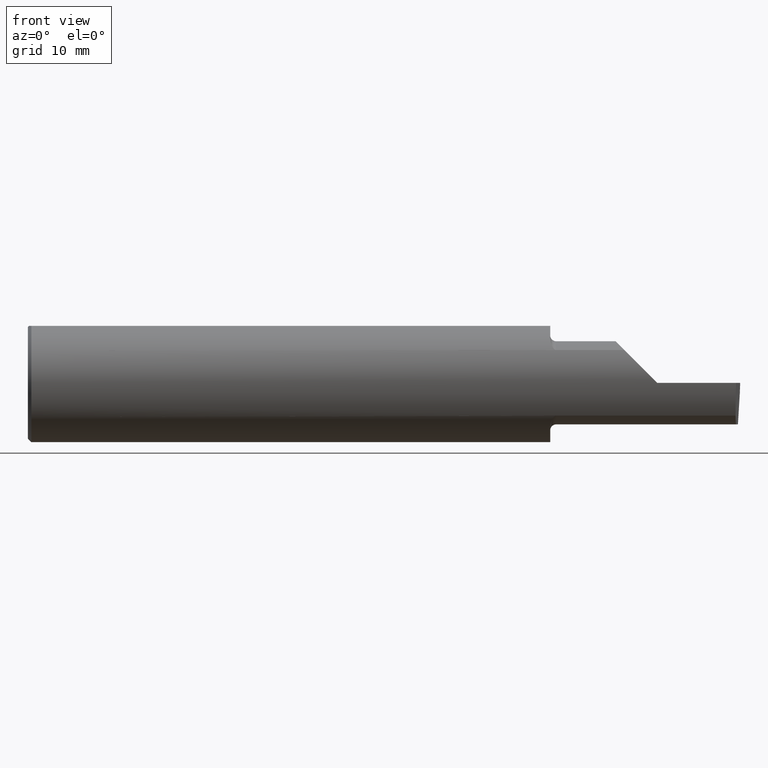
[diagram: clean part render]
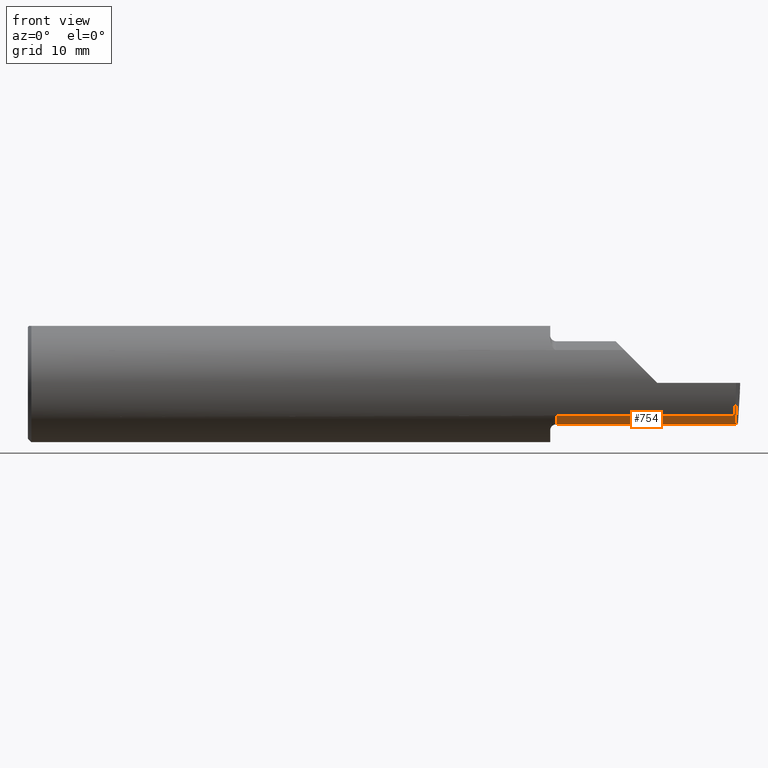
[diagram: same view with one face highlighted and labeled with its STEP entity id]
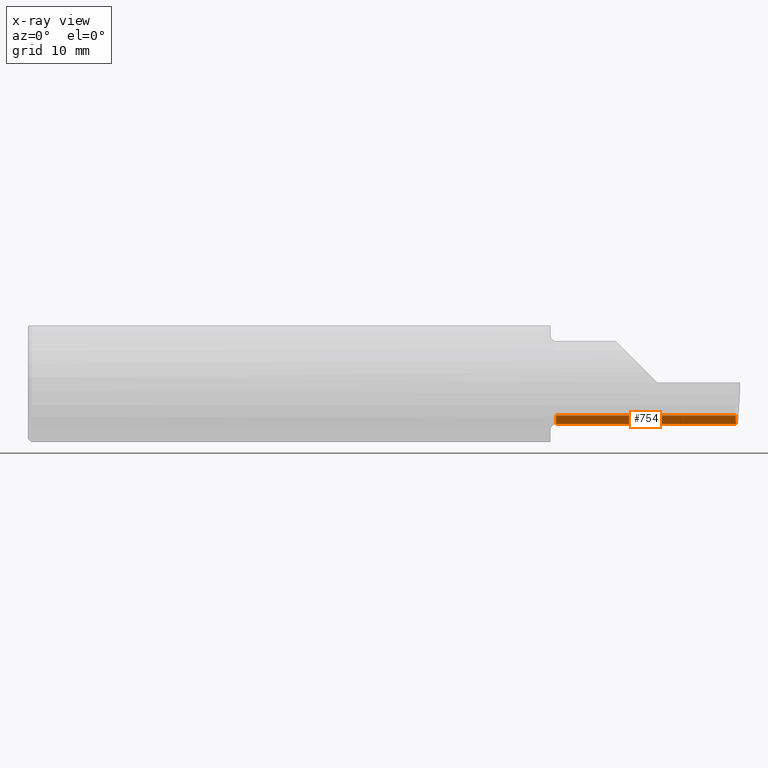
[diagram: x-ray of the same camera — body ghosted, the highlighted face saturated]
A machine part, front view. The second image highlights one B-rep face of the part: STEP entity #754.
The next image is the same camera in x-ray: the body ghosted, the highlighted face saturated — about 0% of this face is hidden behind the body in this view.
In plain terms, the highlighted cylindrical surface (partial cylindrical patch) has radius 4.445 mm, axis along (-1, -0, -0).
Its self-contained STEP definition (entity closure, byte-faithful):
#2 = VERTEX_POINT ( 'NONE', #166 ) ;
#6 = VECTOR ( 'NONE', #167, 39.37007874015748143 ) ;
#10 = CARTESIAN_POINT ( 'NONE',  ( 2.225000000000000089, -0.1008499999999999536, -0.1749999999999999889 ) ) ;
#25 = DIRECTION ( 'NONE',  ( 0.000000000000000000, 0.000000000000000000, 1.000000000000000000 ) ) ;
#27 = VECTOR ( 'NONE', #440, 39.37007874015748143 ) ;
#29 = DIRECTION ( 'NONE',  ( -1.000000000000000000, -0.000000000000000000, -0.000000000000000000 ) ) ;
#32 = CARTESIAN_POINT ( 'NONE',  ( 2.200000000000000178, -0.1008499999999999674, 0.000000000000000000 ) ) ;
#33 = CARTESIAN_POINT ( 'NONE',  ( 3.000000000000000444, -0.1008499999999999813, -0.1749999999999999889 ) ) ;
#64 = VERTEX_POINT ( 'NONE', #294 ) ;
#73 = CARTESIAN_POINT ( 'NONE',  ( 2.983262242683407006, -0.1008499999999999674, -0.1749999999999999889 ) ) ;
#82 = ORIENTED_EDGE ( 'NONE', *, *, #534, .T. ) ;
#93 = FACE_OUTER_BOUND ( 'NONE', #528, .T. ) ;
#110 = EDGE_CURVE ( 'NONE', #682, #355, #399, .T. ) ;
#115 = ORIENTED_EDGE ( 'NONE', *, *, #267, .F. ) ;
#134 = AXIS2_PLACEMENT_3D ( 'NONE', #580, #575, #25 ) ;
#142 = VECTOR ( 'NONE', #29, 39.37007874015748143 ) ;
#166 = CARTESIAN_POINT ( 'NONE',  ( 2.225000000000000089, -0.2080850024789291375, -0.1382955322609665805 ) ) ;
#167 = DIRECTION ( 'NONE',  ( -1.000000000000000000, -0.000000000000000000, -0.000000000000000000 ) ) ;
#170 = EDGE_CURVE ( 'NONE', #64, #597, #437, .T. ) ;
#185 = CARTESIAN_POINT ( 'NONE',  ( 2.980479240051444378, -0.2080850024789291652, -0.1382955322609665250 ) ) ;
#267 = EDGE_CURVE ( 'NONE', #597, #2, #626, .T. ) ;
#292 = ORIENTED_EDGE ( 'NONE', *, *, #110, .F. ) ;
#294 = CARTESIAN_POINT ( 'NONE',  ( 2.760029432995152465, -0.1008500000000000091, -0.1749999999999999889 ) ) ;
#349 = DIRECTION ( 'NONE',  ( 0.000000000000000000, 0.000000000000000000, 1.000000000000000000 ) ) ;
#355 = VERTEX_POINT ( 'NONE', #447 ) ;
#359 = EDGE_CURVE ( 'NONE', #355, #64, #630, .T. ) ;
#399 =( BOUNDED_CURVE ( )  B_SPLINE_CURVE ( 3, ( #737, #621, #679, #73 ),
 .UNSPECIFIED., .F., .F. ) 
 B_SPLINE_CURVE_WITH_KNOTS ( ( 4, 4 ),
 ( 0.2675252011803429530, 0.9270880441442505004 ),
 .UNSPECIFIED. ) 
 CURVE ( )  GEOMETRIC_REPRESENTATION_ITEM ( )  RATIONAL_B_SPLINE_CURVE ( ( 1.000000000000000000, 0.9640754331822828371, 0.9640754331822828371, 1.000000000000000000 ) ) 
 REPRESENTATION_ITEM ( '' )  );
#410 = CYLINDRICAL_SURFACE ( 'NONE', #531, 0.1749999999999999889 ) ;
#437 = LINE ( 'NONE', #565, #27 ) ;
#440 = DIRECTION ( 'NONE',  ( -1.000000000000000000, -0.000000000000000000, -0.000000000000000000 ) ) ;
#447 = CARTESIAN_POINT ( 'NONE',  ( 2.983262242683407006, -0.1008499999999999674, -0.1749999999999999889 ) ) ;
#462 = CARTESIAN_POINT ( 'NONE',  ( 2.487000000000000099, -0.2080850024789291652, -0.1382955322609665250 ) ) ;
#528 = EDGE_LOOP ( 'NONE', ( #666, #706, #292, #82, #115 ) ) ;
#531 = AXIS2_PLACEMENT_3D ( 'NONE', #32, #708, #349 ) ;
#534 = EDGE_CURVE ( 'NONE', #682, #2, #767, .T. ) ;
#565 = CARTESIAN_POINT ( 'NONE',  ( 2.200000000000000178, -0.1008499999999999536, -0.1749999999999999889 ) ) ;
#575 = DIRECTION ( 'NONE',  ( -1.000000000000000000, -0.000000000000000000, -0.000000000000000000 ) ) ;
#580 = CARTESIAN_POINT ( 'NONE',  ( 2.225000000000000089, -0.1008499999999999674, 0.000000000000000000 ) ) ;
#597 = VERTEX_POINT ( 'NONE', #10 ) ;
#621 = CARTESIAN_POINT ( 'NONE',  ( 2.980931506555613453, -0.1771157075472509779, -0.1623092683844330475 ) ) ;
#626 = CIRCLE ( 'NONE', #134, 0.1749999999999999889 ) ;
#630 = LINE ( 'NONE', #33, #142 ) ;
#666 = ORIENTED_EDGE ( 'NONE', *, *, #170, .F. ) ;
#679 = CARTESIAN_POINT ( 'NONE',  ( 2.981893741990786495, -0.1400387324517231025, -0.1750000000000000167 ) ) ;
#682 = VERTEX_POINT ( 'NONE', #185 ) ;
#706 = ORIENTED_EDGE ( 'NONE', *, *, #359, .F. ) ;
#708 = DIRECTION ( 'NONE',  ( -1.000000000000000000, -0.000000000000000000, -0.000000000000000000 ) ) ;
#737 = CARTESIAN_POINT ( 'NONE',  ( 2.980479240051444378, -0.2080850024789291652, -0.1382955322609665250 ) ) ;
#754 = ADVANCED_FACE ( 'NONE', ( #93 ), #410, .T. ) ;
#767 = LINE ( 'NONE', #462, #6 ) ;